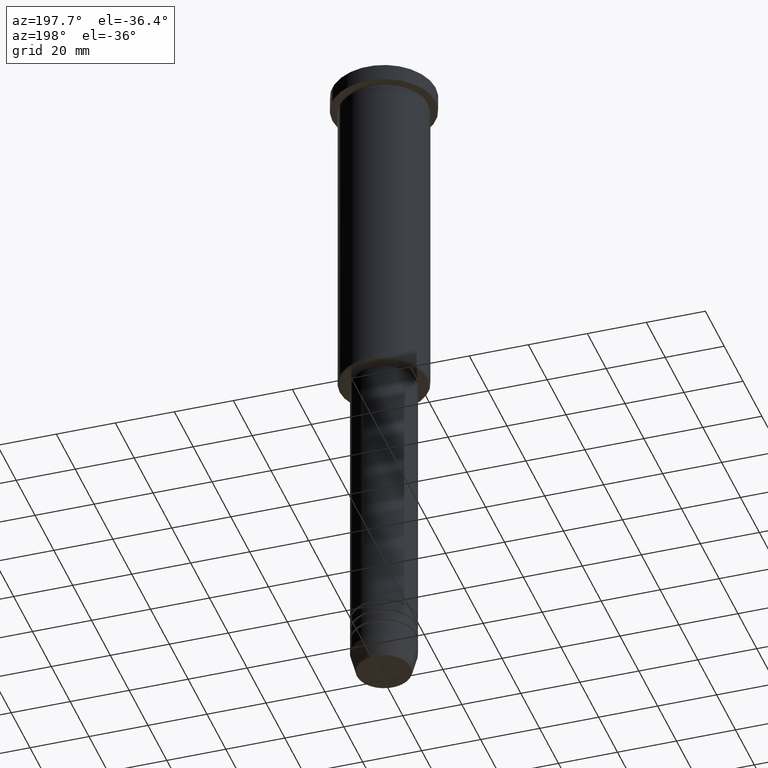
[diagram: clean part render]
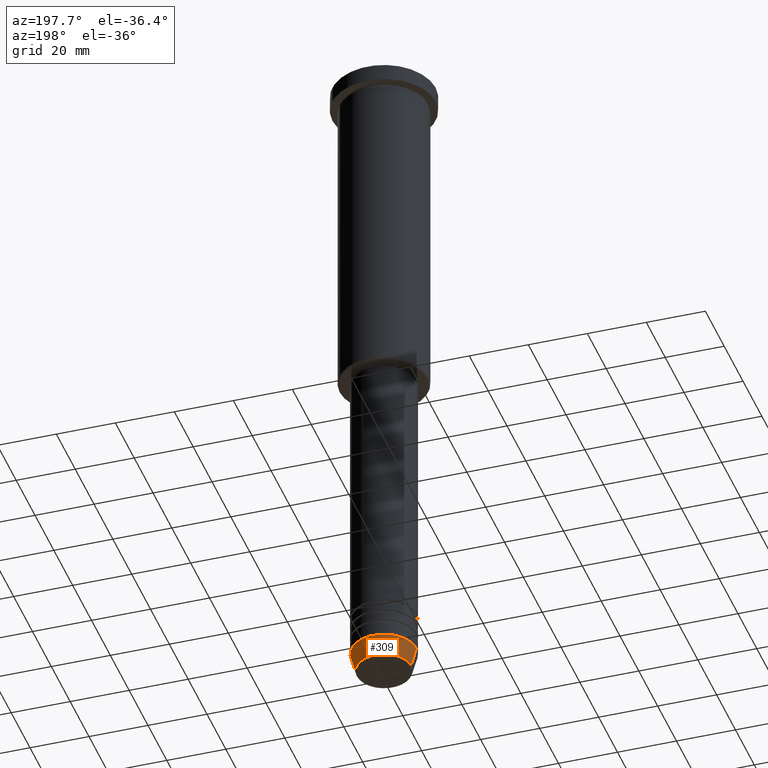
[diagram: same view with one face highlighted and labeled with its STEP entity id]
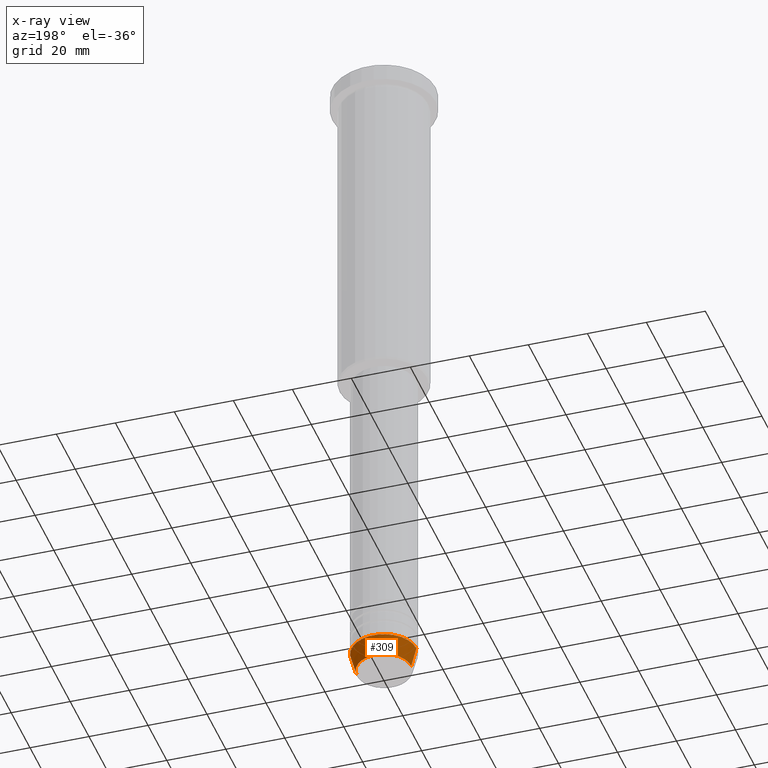
[diagram: x-ray of the same camera — body ghosted, the highlighted face saturated]
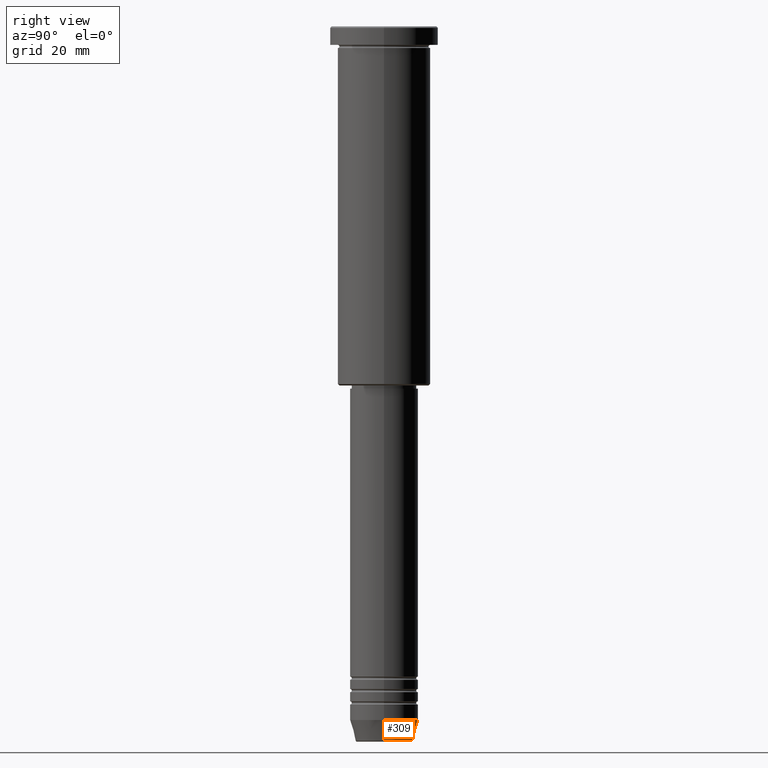
[diagram: same view with one face highlighted and labeled with its STEP entity id]
A machine part, auxiliary view. The second image highlights one B-rep face of the part: STEP entity #309.
The next image is the same camera in x-ray: the body ghosted, the highlighted face saturated — about 0% of this face is hidden behind the body in this view.
A second angle (right view) of the same face is appended — the face is thin or edge-on in the first view.
In plain terms, the highlighted conical surface has half-angle 15 deg.
Its self-contained STEP definition (entity closure, byte-faithful):
#64 = AXIS2_PLACEMENT_3D ( 'NONE', #511, #1080, #626 ) ;
#110 = VERTEX_POINT ( 'NONE', #745 ) ;
#134 = ORIENTED_EDGE ( 'NONE', *, *, #758, .F. ) ;
#147 = CARTESIAN_POINT ( 'NONE',  ( -11.00000000000000000, 1.347111479062088405E-15, -224.0000000000000284 ) ) ;
#151 = FACE_OUTER_BOUND ( 'NONE', #435, .T. ) ;
#240 = VERTEX_POINT ( 'NONE', #953 ) ;
#307 = ORIENTED_EDGE ( 'NONE', *, *, #330, .F. ) ;
#309 = ADVANCED_FACE ( 'NONE', ( #151 ), #882, .T. ) ;
#319 = VERTEX_POINT ( 'NONE', #603 ) ;
#330 = EDGE_CURVE ( 'NONE', #927, #110, #655, .T. ) ;
#343 = DIRECTION ( 'NONE',  ( -0.000000000000000000, -0.000000000000000000, 1.000000000000000000 ) ) ;
#377 = VECTOR ( 'NONE', #752, 1000.000000000000000 ) ;
#378 = CARTESIAN_POINT ( 'NONE',  ( 11.00000000000000000, 0.000000000000000000, -224.0000000000000284 ) ) ;
#435 = EDGE_LOOP ( 'NONE', ( #870, #606, #307, #134 ) ) ;
#437 = EDGE_CURVE ( 'NONE', #240, #319, #920, .T. ) ;
#507 = DIRECTION ( 'NONE',  ( -0.2588190451025213501, 3.169619151431772337E-17, 0.9659258262890680902 ) ) ;
#511 = CARTESIAN_POINT ( 'NONE',  ( 0.000000000000000000, 0.000000000000000000, -224.0000000000000284 ) ) ;
#514 = LINE ( 'NONE', #147, #819 ) ;
#546 = AXIS2_PLACEMENT_3D ( 'NONE', #831, #926, #743 ) ;
#603 = CARTESIAN_POINT ( 'NONE',  ( -9.223655072137189492, 1.238341722557647202E-15, -230.6294095225512990 ) ) ;
#606 = ORIENTED_EDGE ( 'NONE', *, *, #686, .T. ) ;
#626 = DIRECTION ( 'NONE',  ( 1.000000000000000000, 0.000000000000000000, 0.000000000000000000 ) ) ;
#637 = CARTESIAN_POINT ( 'NONE',  ( 11.00000000000000000, 0.000000000000000000, -224.0000000000000284 ) ) ;
#655 = CIRCLE ( 'NONE', #1045, 11.00000000000000000 ) ;
#686 = EDGE_CURVE ( 'NONE', #319, #110, #514, .T. ) ;
#743 = DIRECTION ( 'NONE',  ( 1.000000000000000000, 0.000000000000000000, 0.000000000000000000 ) ) ;
#745 = CARTESIAN_POINT ( 'NONE',  ( -11.00000000000000000, 1.347111479062088405E-15, -224.0000000000000284 ) ) ;
#748 = LINE ( 'NONE', #637, #377 ) ;
#752 = DIRECTION ( 'NONE',  ( 0.2588190451025213501, 0.000000000000000000, 0.9659258262890680902 ) ) ;
#758 = EDGE_CURVE ( 'NONE', #240, #927, #748, .T. ) ;
#819 = VECTOR ( 'NONE', #507, 1000.000000000000000 ) ;
#831 = CARTESIAN_POINT ( 'NONE',  ( 0.000000000000000000, 0.000000000000000000, -230.6294095225512990 ) ) ;
#870 = ORIENTED_EDGE ( 'NONE', *, *, #437, .T. ) ;
#882 = CONICAL_SURFACE ( 'NONE', #64, 11.00000000000000000, 0.2617993877991500740 ) ;
#912 = CARTESIAN_POINT ( 'NONE',  ( 0.000000000000000000, 0.000000000000000000, -224.0000000000000284 ) ) ;
#920 = CIRCLE ( 'NONE', #546, 9.223655072137189492 ) ;
#926 = DIRECTION ( 'NONE',  ( -0.000000000000000000, -0.000000000000000000, 1.000000000000000000 ) ) ;
#927 = VERTEX_POINT ( 'NONE', #378 ) ;
#953 = CARTESIAN_POINT ( 'NONE',  ( 9.223655072137189492, 0.000000000000000000, -230.6294095225512990 ) ) ;
#979 = DIRECTION ( 'NONE',  ( 1.000000000000000000, 0.000000000000000000, 0.000000000000000000 ) ) ;
#1045 = AXIS2_PLACEMENT_3D ( 'NONE', #912, #343, #979 ) ;
#1080 = DIRECTION ( 'NONE',  ( -0.000000000000000000, -0.000000000000000000, 1.000000000000000000 ) ) ;